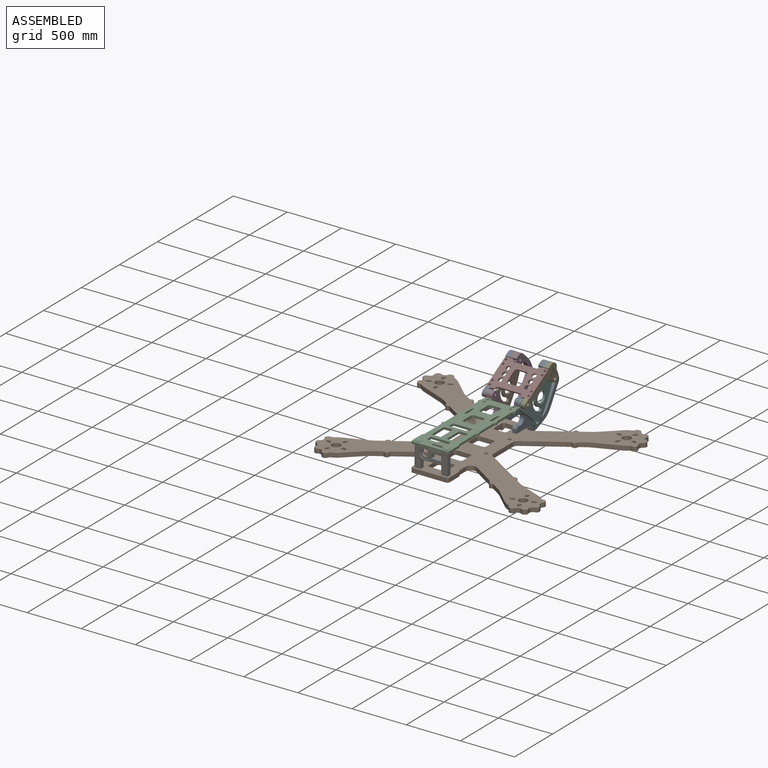
[diagram: assembled view]
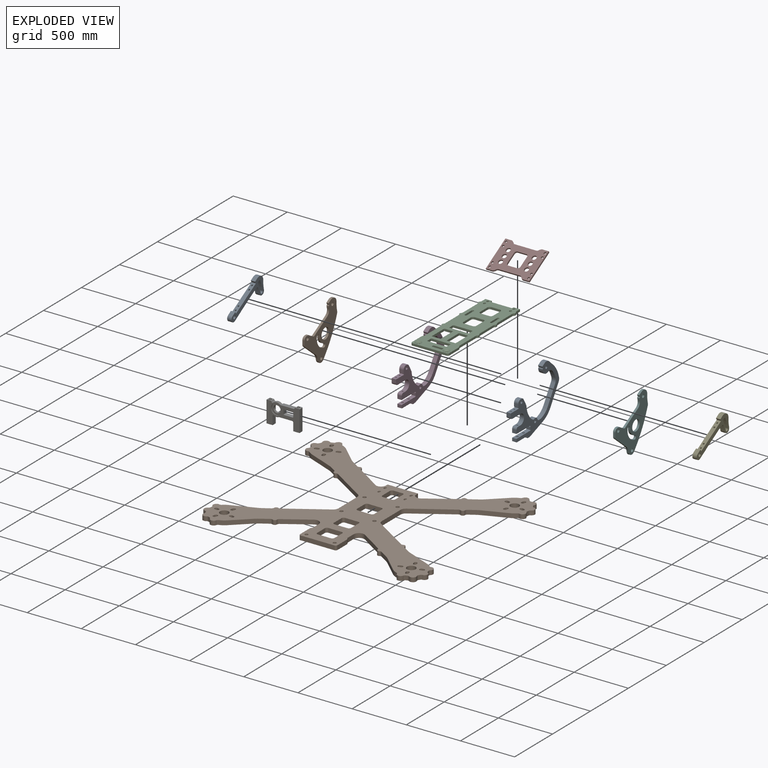
[diagram: exploded view]
GUIDED TOUR — MATED ASSEMBLY (Onshape document b9eb516c0b4cd9f7727613ba, AutoMate assembly b9eb516c0b4cd9f7727613ba_83f67d9e7461dbdbe959f93a_5855682b176cfd783782a654_default)

This assembly has 10 components, labeled P0..P9 below (a component is one placed occurrence of a part; the same part can appear more than once), held together by 9 mates. A mate is a constraint between two components; its type names the relative motion it leaves free:
  FASTENED — locks the two components together rigidly (no relative motion),
  REVOLUTE — leaves rotation about the listed axis free (a hinge).
Axis/direction vectors are unit vectors and 'through' points are millimeter coordinates, both in the assembly's world frame.

MATES
  1. REVOLUTE "Revolute 1": P4 <-> P5, axis (-1.000, 0.000, 0.000) through (20381.10, -17925.01, -26.40) mm
  2. REVOLUTE "Revolute 2": P0 <-> P1, axis (1.000, 0.000, 0.000) through (20061.10, -17925.01, -26.40) mm
  3. FASTENED "Fastened 1": P6 <-> P9, direction (0.000, 0.000, -1.000) through (20351.10, -18900.01, -265.48) mm
  4. FASTENED "Fastened 4": P3 <-> P9, direction (0.000, 0.000, -1.000) through (20101.10, -17872.51, -265.48) mm
  5. FASTENED "Fastened 6": P1 <-> P3, direction (1.000, 0.000, 0.000) through (20081.10, -17925.01, -26.40) mm
  6. FASTENED "Fastened 3": P8 <-> P9, direction (0.000, 0.000, -1.000) through (20341.10, -17872.51, -265.48) mm
  7. FASTENED "Fastened 5": P8 <-> P5, direction (1.000, 0.000, 0.000) through (20361.10, -17925.01, -26.40) mm
  8. FASTENED "Fastened 2": P2 <-> P6, direction (0.000, 0.000, -1.000) through (20351.10, -18900.01, -65.48) mm
  9. FASTENED "Fastened 7": P7 <-> P0, direction (0.000, 0.504, -0.864) through (20041.10, -17882.55, 9.96) mm

ASSEMBLY ORDER
  1. P8 — the base component [order verified]
  2. P5 [order verified]
  3. P9 [order verified]
  4. P4 [order verified]
  5. P3 [order verified]
  6. P2 [order verified]
  7. P1 [order verified]
  8. P0 [order verified]
  9. P6 [order verified]
  10. P7 [order verified]
Order-tag legend:
  [order verified] — this step's position reverses a verified removal order: the component was checked to insert without passing through the ones already placed.

Of the 10 components, 3 carry the full construction recipe — the FeatureScript program that regenerates the part's solid from scratch; the rest are supplied as boundary geometry only.
Each toured component is shown spotlighted twice — in the assembled view, then in the exploded view, where a leader line traces a displaced component back to its assembled socket (saturated green if recipe-attached, orange if geometry-only; every other component desaturated gray) — followed by its recipe or geometry summary and the mates that hold it.
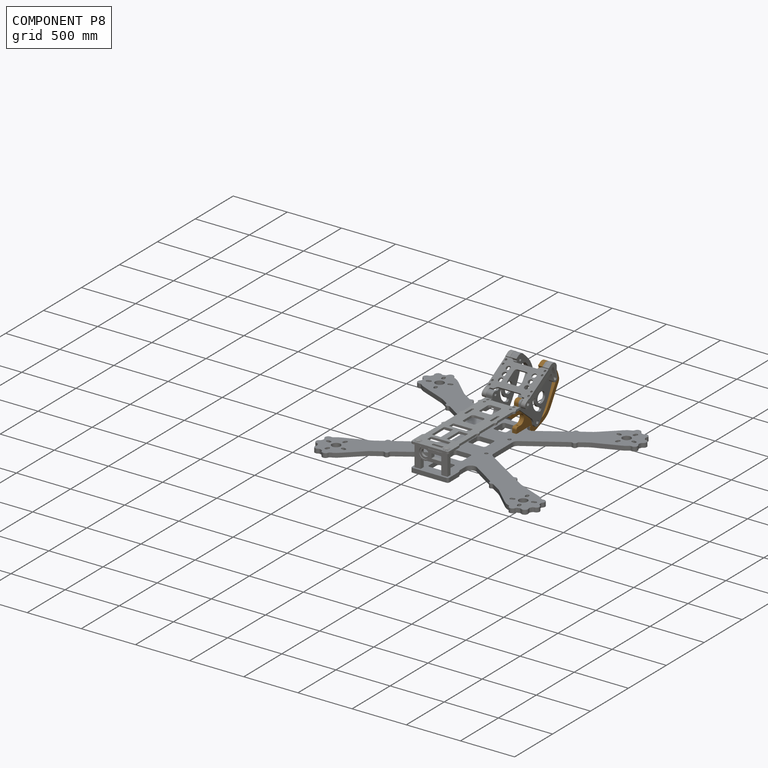
[diagram: component P8 — assembled]
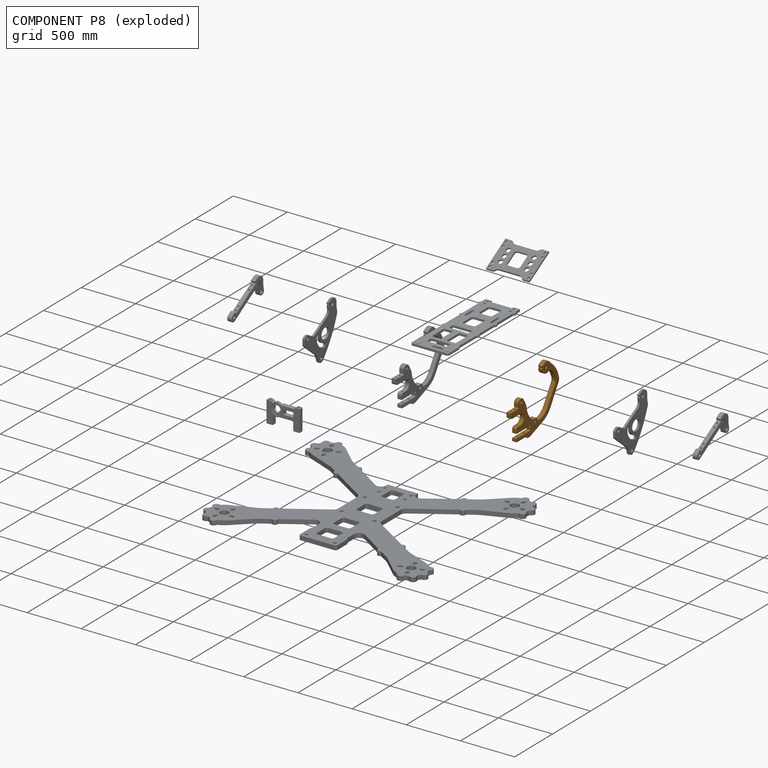
[diagram: component P8 — exploded]
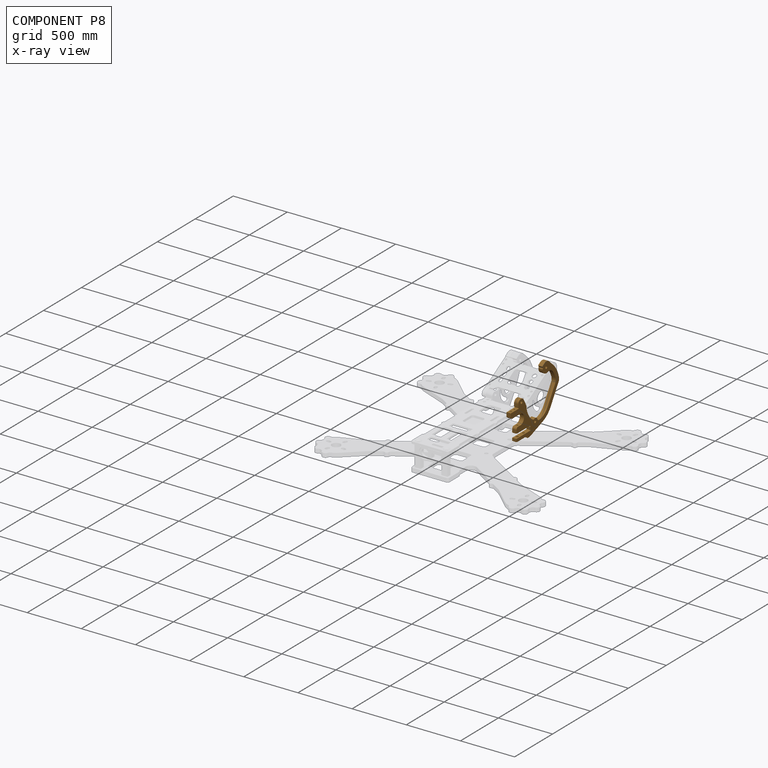
[diagram: component P8 — x-ray view]
COMPONENT P8 — geometry summary (no construction recipe available for this part):
  bounding box: 637.4 x 547.0 x 40.0 mm
  B-rep topology: 1 solid, 67 faces, 391 edges
  volume: 3140983 mm^3 (23% of its bounding box)
  symmetry: mirror-symmetric across its z mid-plane
Held by: FASTENED mate "Fastened 3" to P9; FASTENED mate "Fastened 5" to P5.
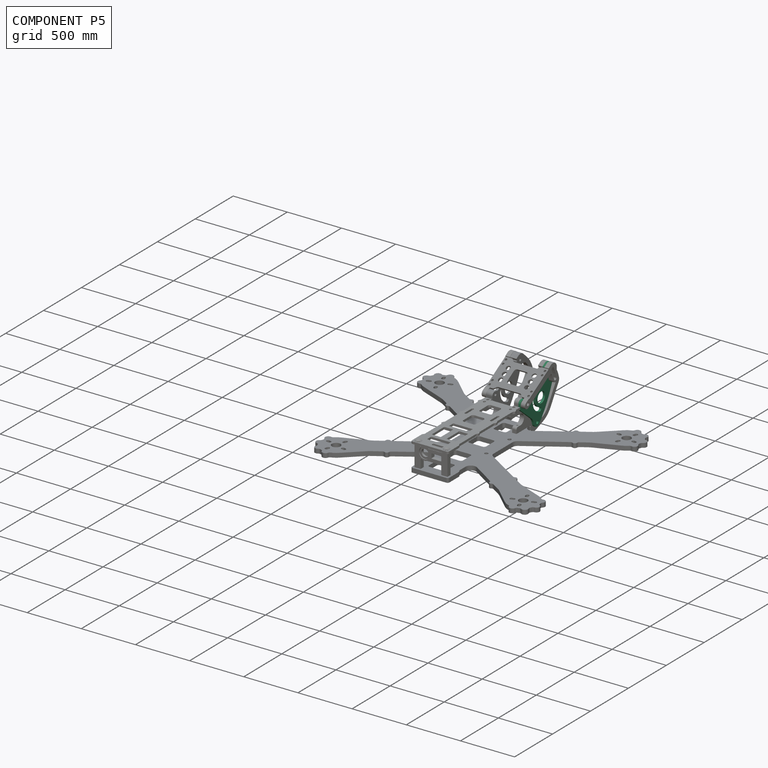
[diagram: component P5 — assembled]
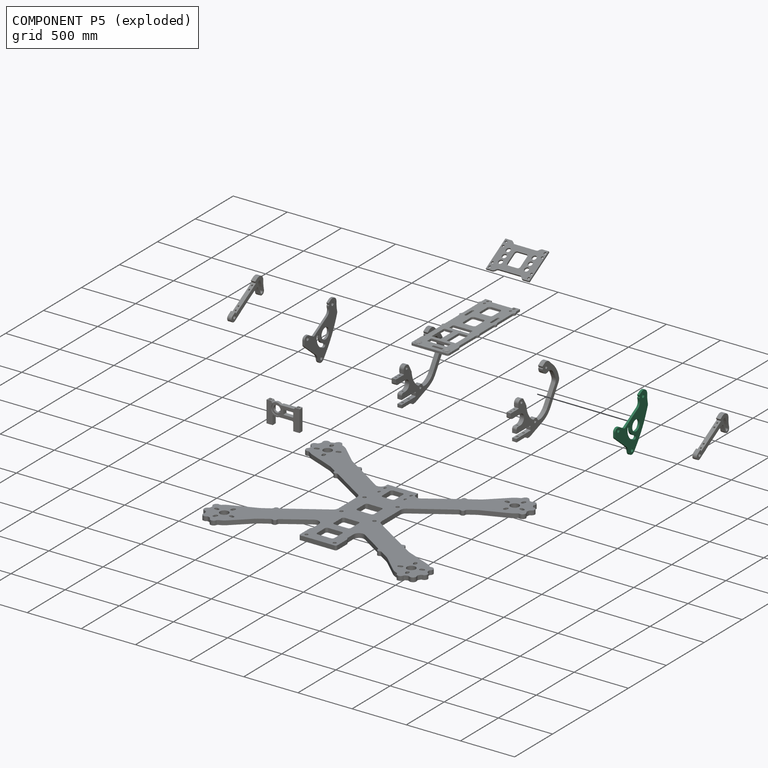
[diagram: component P5 — exploded]
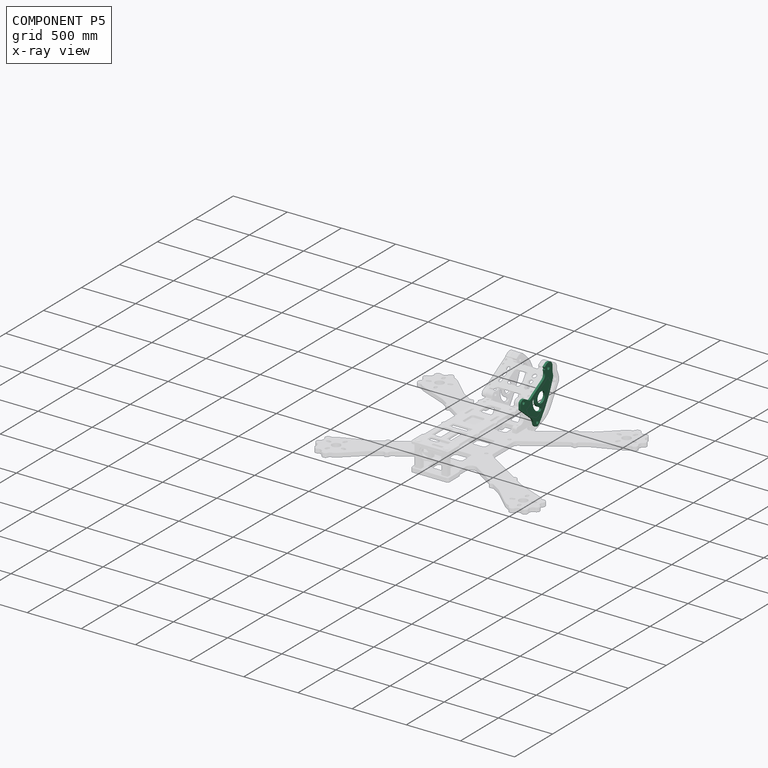
[diagram: component P5 — x-ray view]
COMPONENT P5 — same part as P1 (CADFS 00860523); its construction recipe is shown at P1.
Held by: REVOLUTE mate "Revolute 1" to P4; FASTENED mate "Fastened 5" to P8.
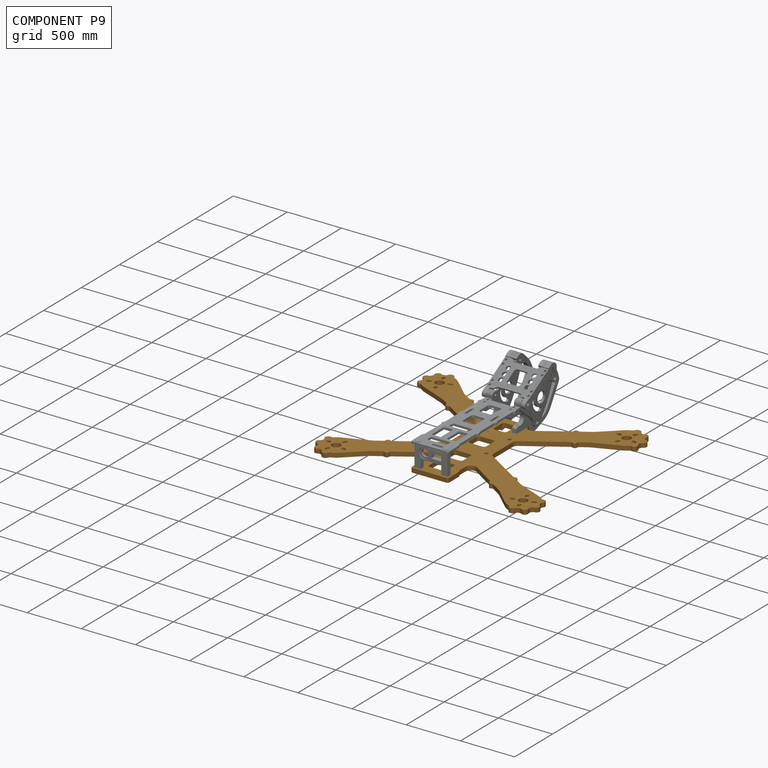
[diagram: component P9 — assembled]
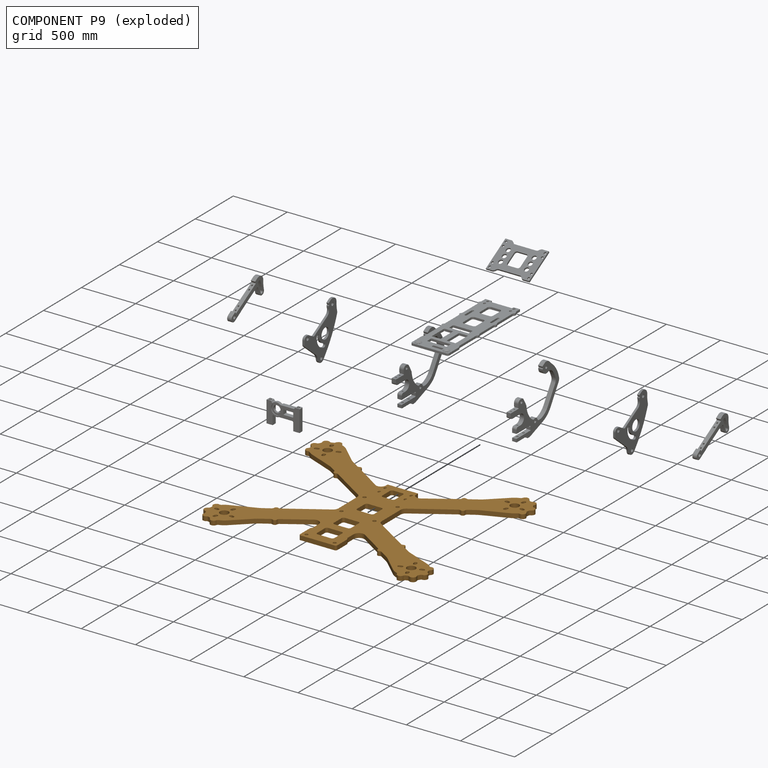
[diagram: component P9 — exploded]
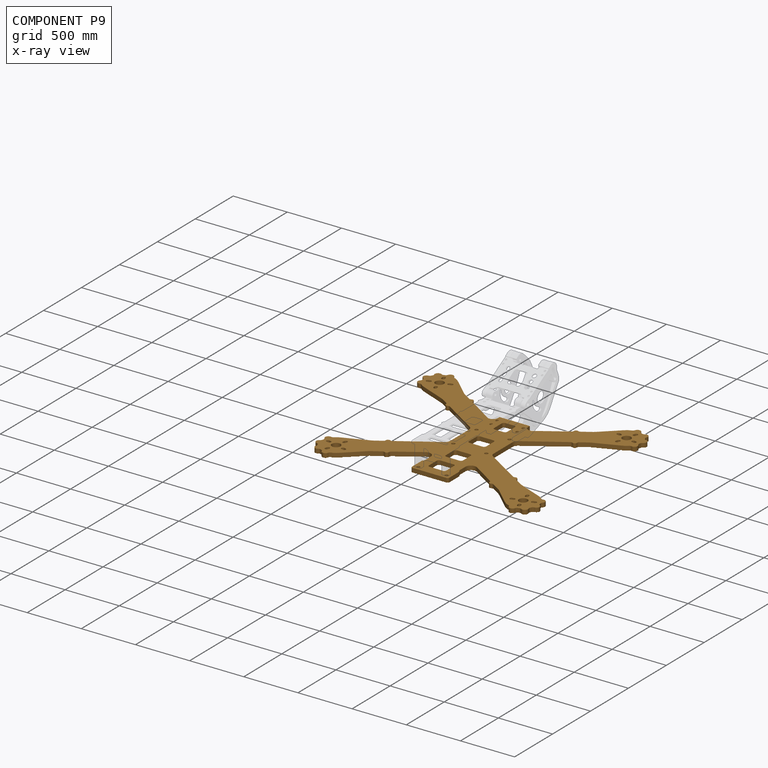
[diagram: component P9 — x-ray view]
COMPONENT P9 — geometry summary (no construction recipe available for this part):
  bounding box: 2064.0 x 1705.0 x 40.0 mm
  B-rep topology: 1 solid, 280 faces, 1644 edges
  volume: 43660846 mm^3 (31% of its bounding box)
  symmetry: 2-fold rotationally symmetric about the y axis; mirror-symmetric across its x mid-plane, z mid-plane
Held by: FASTENED mate "Fastened 1" to P6; FASTENED mate "Fastened 4" to P3; FASTENED mate "Fastened 3" to P8.
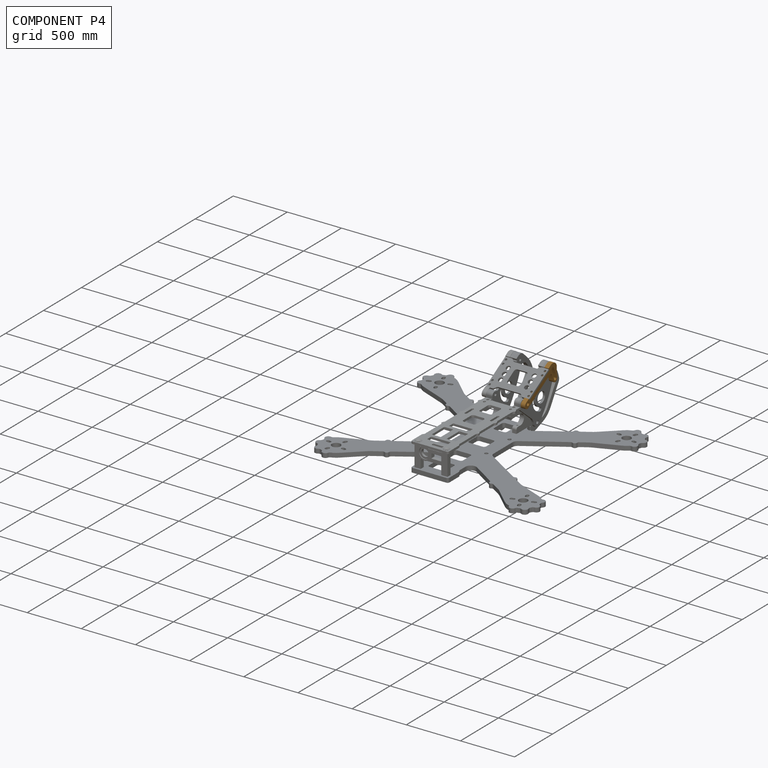
[diagram: component P4 — assembled]
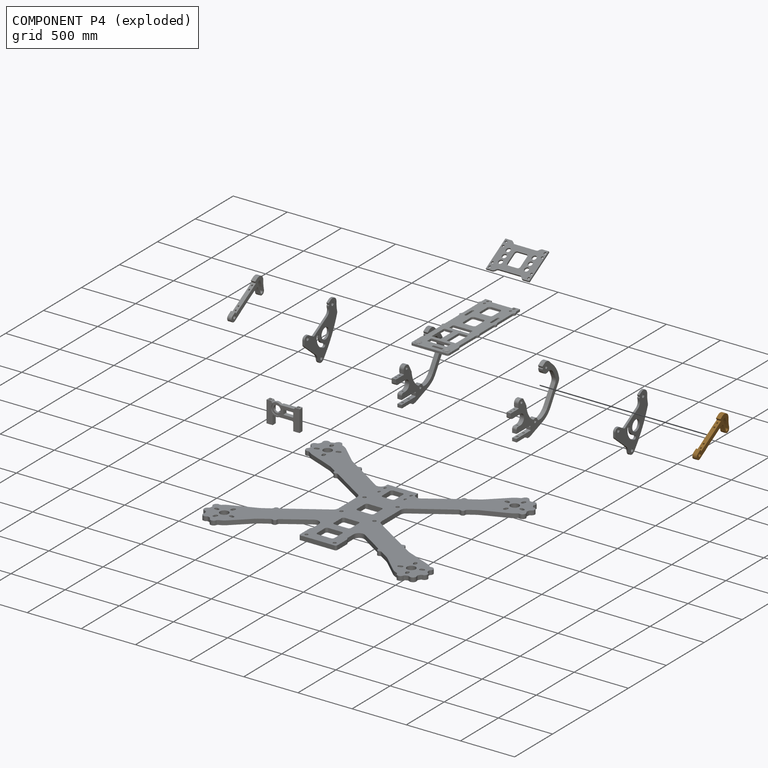
[diagram: component P4 — exploded]
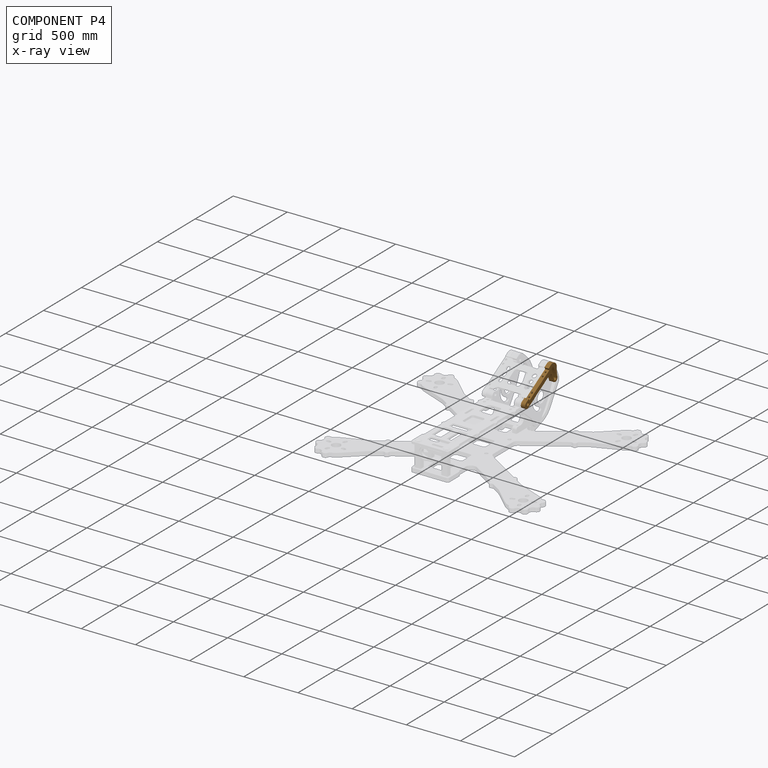
[diagram: component P4 — x-ray view]
COMPONENT P4 — geometry summary (no construction recipe available for this part):
  bounding box: 461.4 x 174.9 x 40.0 mm
  B-rep topology: 1 solid, 35 faces, 198 edges
  volume: 909315 mm^3 (28% of its bounding box)
  symmetry: mirror-symmetric across its z mid-plane
Held by: REVOLUTE mate "Revolute 1" to P5.
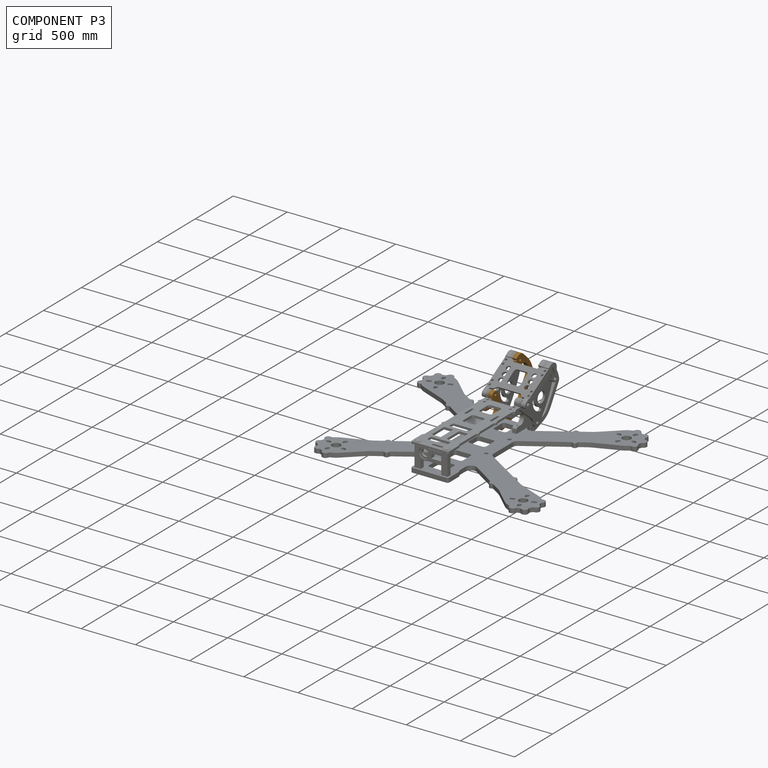
[diagram: component P3 — assembled]
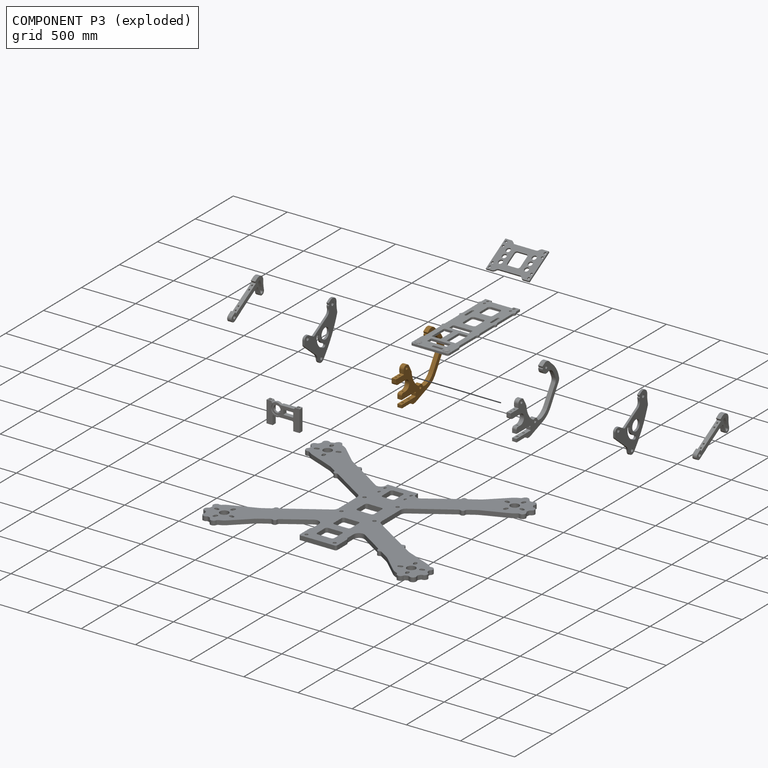
[diagram: component P3 — exploded]
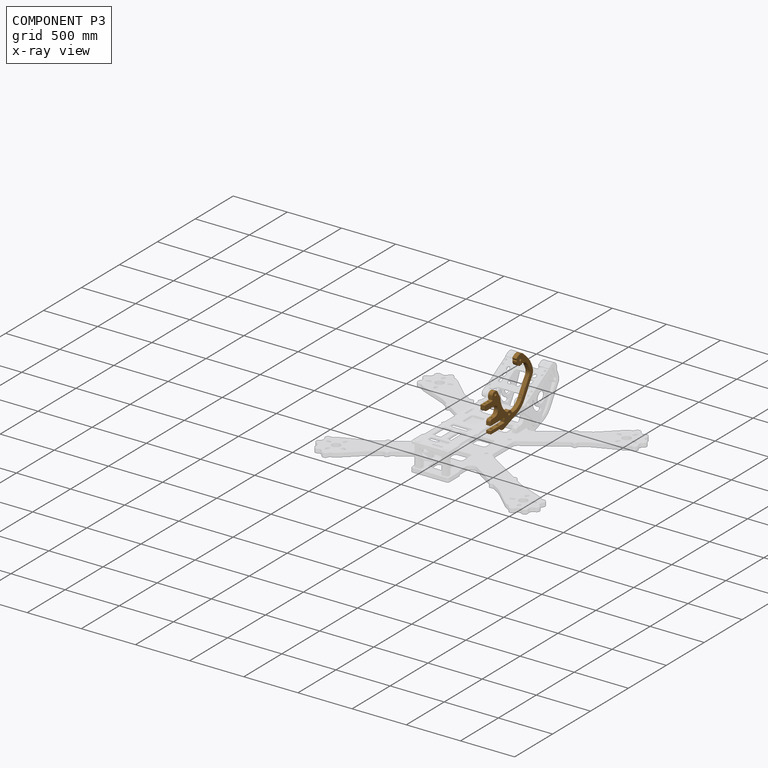
[diagram: component P3 — x-ray view]
COMPONENT P3 — geometry summary (no construction recipe available for this part):
  bounding box: 637.4 x 547.0 x 40.0 mm
  B-rep topology: 1 solid, 67 faces, 391 edges
  volume: 3140983 mm^3 (23% of its bounding box)
  symmetry: mirror-symmetric across its z mid-plane
Held by: FASTENED mate "Fastened 4" to P9; FASTENED mate "Fastened 6" to P1.
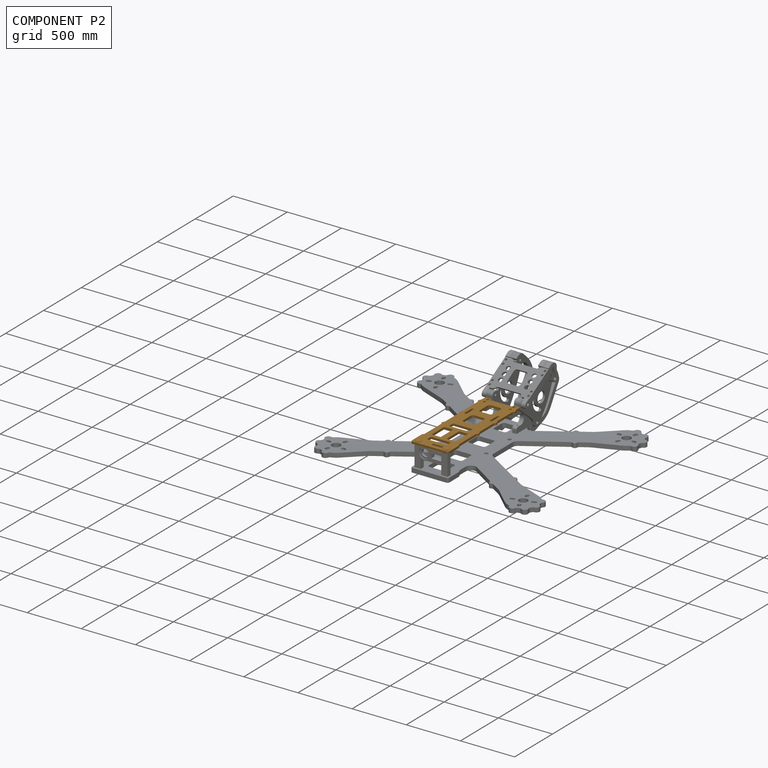
[diagram: component P2 — assembled]
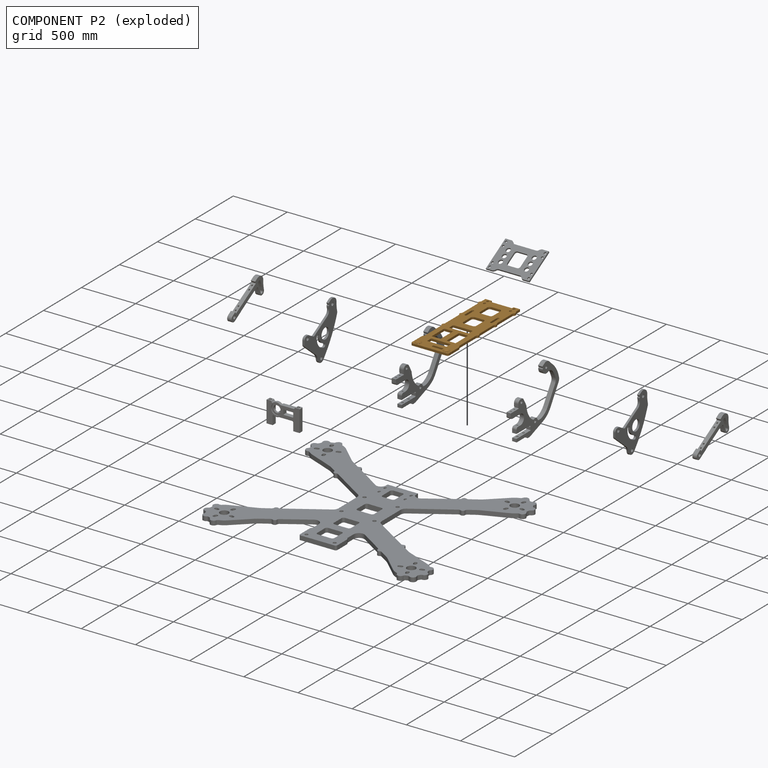
[diagram: component P2 — exploded]
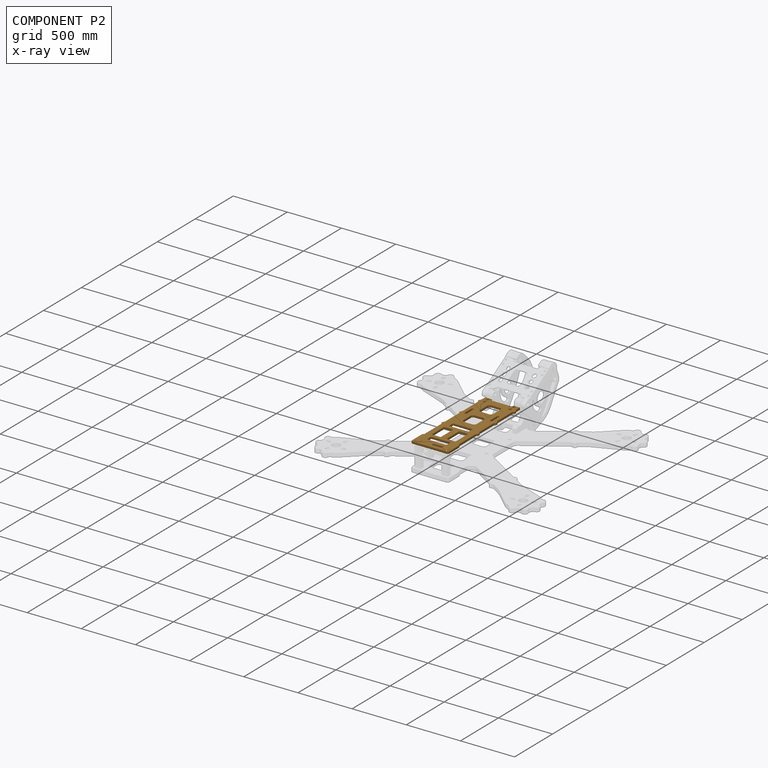
[diagram: component P2 — x-ray view]
COMPONENT P2 — geometry summary (no construction recipe available for this part):
  bounding box: 966.0 x 345.0 x 20.0 mm
  B-rep topology: 1 solid, 128 faces, 768 edges
  volume: 4396450 mm^3 (66% of its bounding box)
Held by: FASTENED mate "Fastened 2" to P6.
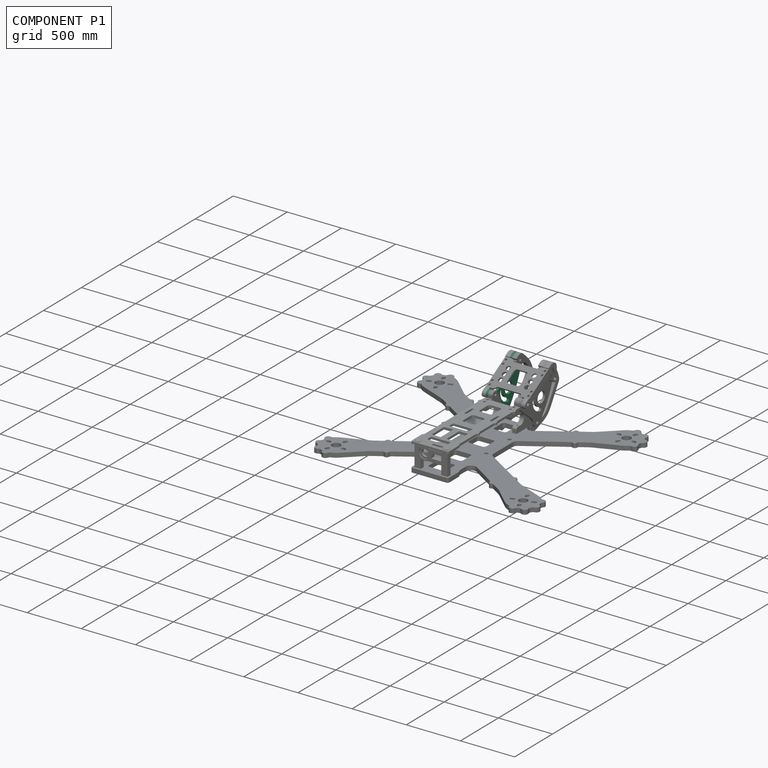
[diagram: component P1 — assembled]
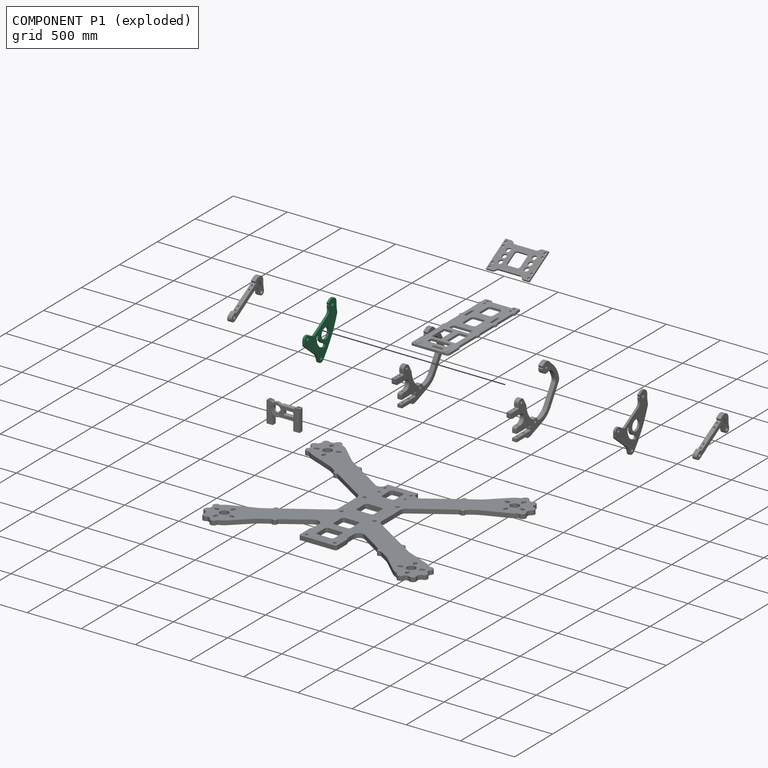
[diagram: component P1 — exploded]
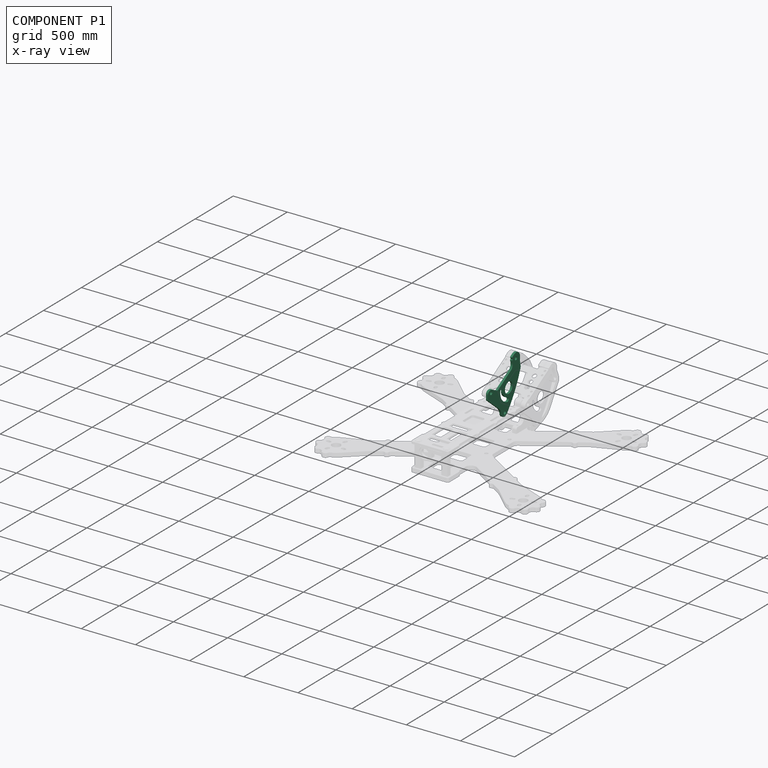
[diagram: component P1 — x-ray view]
COMPONENT P1 — recipe-attached (CADFS 00860523, mesh-verified: the recipe's output STEP matches this component's geometry to below the mesh-comparison resolution (tessellation chordal tolerance ~0.969 mm)).
Held by: REVOLUTE mate "Revolute 2" to P0; FASTENED mate "Fastened 6" to P3.
Construction recipe (FeatureScript — the CAD program that rebuilds this solid; sketch coordinates are in the units given by the * unit suffixes, e.g. mm):

FeatureScript 1511;
import(path : "onshape/std/geometry.fs", version : "1511.0");
import(path : "onshape/std/common.fs", version : "1511.0");
const mm = millimeter;
const VERTEX = EntityType.VERTEX;
const EDGE = EntityType.EDGE;
const FACE = EntityType.FACE;
const BODY = EntityType.BODY;
function v(x, y){return vector(x, y);}
function OD(order){return orderDisambiguation(order);}
function OSD(set){return originalSetDisambiguation(set);}
function TD(topology){return topologyDisambiguation(topology);}
function TDD(query){return trueDependencyDisambiguation(query);}
function sQuery(a, b, c) {return sketchEntityQuery(a, b, c);}

annotation { "Feature Type Name" : "Feature", "Feature Type Description" : "" }
export const myFeature = defineFeature(function(context is Context, id is Id, definition is map)
    precondition{}
    {
        {
            var Q0;
            Q0=qCreatedBy(makeId("Right.planeOp"),FACE);
            var sketch = newSketch(context, id + "F0", { "sketchPlane" : qUnion([Q0])});
            skArc(sketch, "E0", {"start": v(-12.88, 3.84) * mm, "mid": v(-11.46, 5.86) * mm, "end": v(-9.44, 4.45) * mm});
            skArc(sketch, "E1", {"start": v(-9.44, 4.45) * mm, "mid": v(-6.52, -0.36) * mm, "end": v(-1.13, -1.93) * mm});
            skArc(sketch, "E2", {"start": v(-1.13, -1.93) * mm, "mid": v(0.77, -3.52) * mm, "end": v(-0.82, -5.42) * mm});
            skArc(sketch, "E3", {"start": v(-0.82, -5.42) * mm, "mid": v(-8.65, -3.13) * mm, "end": v(-12.88, 3.84) * mm});
            skCircle(sketch, "E4", {"center": v(-1.8, 5.8) * mm, "radius": 5 * mm});
            skCircle(sketch, "E5", {"center": v(2.4, -17.3) * mm, "radius": 1.5 * mm});
            skCircle(sketch, "E6", {"center": v(19.05, 15.35) * mm, "radius": 1.5 * mm});
            skCircle(sketch, "E7", {"center": v(-20.59, 0.76) * mm, "radius": 1.5 * mm});
            skArc(sketch, "E8", {"start": v(21.21, 10.27) * mm, "mid": v(21.6, 10.22) * mm, "end": v(21.9, 10.45) * mm});
            skLineSegment(sketch, "E9", {"start": v(21.9, 10.45) * mm, "end": v(22.43, 11.35) * mm});
            skArc(sketch, "E10", {"start": v(22.43, 11.35) * mm, "mid": v(22.8, 11.94) * mm, "end": v(23.17, 12.53) * mm});
            skArc(sketch, "E11", {"start": v(23.17, 12.53) * mm, "mid": v(23.82, 13.87) * mm, "end": v(24.05, 15.35) * mm});
            skLineSegment(sketch, "E12", {"start": v(24.05, 15.35) * mm, "end": v(24.05, 15.68) * mm});
            skArc(sketch, "E13", {"start": v(24.05, 15.68) * mm, "mid": v(22.47, 19.32) * mm, "end": v(18.74, 20.67) * mm});
            skArc(sketch, "E14", {"start": v(18.74, 20.67) * mm, "mid": v(15.1, 20.71) * mm, "end": v(11.5, 21.29) * mm});
            skArc(sketch, "E15", {"start": v(11.5, 21.29) * mm, "mid": v(11.03, 21.4) * mm, "end": v(10.56, 21.5) * mm});
            skArc(sketch, "E16", {"start": v(10.56, 21.5) * mm, "mid": v(9.7, 21.55) * mm, "end": v(8.87, 21.36) * mm});
            skLineSegment(sketch, "E17", {"start": v(8.87, 21.36) * mm, "end": v(6.1, 20.3) * mm});
            skArc(sketch, "E18", {"start": v(6.1, 20.3) * mm, "mid": v(-8.81, 13.1) * mm, "end": v(-22.34, 3.54) * mm});
            skLineSegment(sketch, "E19", {"start": v(-22.34, 3.54) * mm, "end": v(-22.62, 3.31) * mm});
            skArc(sketch, "E20", {"start": v(-22.62, 3.31) * mm, "mid": v(-23.9, -0.83) * mm, "end": v(-20.65, -3.7) * mm});
            skArc(sketch, "E21", {"start": v(-20.65, -3.7) * mm, "mid": v(-17.27, -4.88) * mm, "end": v(-14.52, -7.16) * mm});
            skLineSegment(sketch, "E22", {"start": v(-14.52, -7.16) * mm, "end": v(-3.03, -20.84) * mm});
            skArc(sketch, "E23", {"start": v(-3.03, -20.84) * mm, "mid": v(-2.35, -21.37) * mm, "end": v(-1.5, -21.56) * mm});
            skLineSegment(sketch, "E24", {"start": v(-1.5, -21.56) * mm, "end": v(2.4, -21.56) * mm});
            skArc(sketch, "E25", {"start": v(2.4, -21.56) * mm, "mid": v(4.53, -20.68) * mm, "end": v(5.4, -18.56) * mm});
            skLineSegment(sketch, "E26", {"start": v(5.4, -18.56) * mm, "end": v(5.4, -17.3) * mm});
            skArc(sketch, "E27", {"start": v(5.4, -17.3) * mm, "mid": v(5.3, -16.53) * mm, "end": v(5, -15.8) * mm});
            skLineSegment(sketch, "E28", {"start": v(5, -15.8) * mm, "end": v(1.78, -10.23) * mm});
            skArc(sketch, "E29", {"start": v(1.78, -10.23) * mm, "mid": v(1.51, -9.23) * mm, "end": v(1.78, -8.23) * mm});
            skLineSegment(sketch, "E30", {"start": v(1.78, -8.23) * mm, "end": v(11.4, 8.42) * mm});
            skArc(sketch, "E31", {"start": v(11.4, 8.42) * mm, "mid": v(13.99, 10.6) * mm, "end": v(17.38, 10.63) * mm});
            skArc(sketch, "E32", {"start": v(17.38, 10.63) * mm, "mid": v(18.27, 10.4) * mm, "end": v(19.18, 10.35) * mm});
            skArc(sketch, "E33", {"start": v(19.18, 10.35) * mm, "mid": v(19.43, 10.43) * mm, "end": v(19.61, 10.62) * mm});
            skArc(sketch, "E34", {"start": v(19.61, 10.62) * mm, "mid": v(19.92, 10.86) * mm, "end": v(20.3, 10.82) * mm});
            skLineSegment(sketch, "E35", {"start": v(20.3, 10.82) * mm, "end": v(21.21, 10.27) * mm});
            skSolve(sketch);
        }
        {
            var Q0;
            Q0 = qSketchRegion(id + "F0", true);
            extrude(context, id + "F1", {"entities" : qUnion([Q0]), "depth" : 2 * mm, "offsetDistance" : 25 * mm});
        }
        {
            var Q0;
            Q0=makeQuery(id+"F1.opExtrude","SWEPT_BODY",BODY,{"disambiguationData":[OSD([sQuery(id+"F0.wireOp",EDGE,"E0"),sQuery(id+"F0.wireOp",EDGE,"E1"),sQuery(id+"F0.wireOp",EDGE,"E2"),sQuery(id+"F0.wireOp",EDGE,"E3"),sQuery(id+"F0.wireOp",EDGE,"E4"),sQuery(id+"F0.wireOp",EDGE,"E5"),sQuery(id+"F0.wireOp",EDGE,"E6"),sQuery(id+"F0.wireOp",EDGE,"E7"),sQuery(id+"F0.wireOp",EDGE,"E8"),sQuery(id+"F0.wireOp",EDGE,"E9"),sQuery(id+"F0.wireOp",EDGE,"E10"),sQuery(id+"F0.wireOp",EDGE,"E11"),sQuery(id+"F0.wireOp",EDGE,"E12"),sQuery(id+"F0.wireOp",EDGE,"E13"),sQuery(id+"F0.wireOp",EDGE,"E14"),sQuery(id+"F0.wireOp",EDGE,"E15"),sQuery(id+"F0.wireOp",EDGE,"E16"),sQuery(id+"F0.wireOp",EDGE,"E17"),sQuery(id+"F0.wireOp",EDGE,"E18"),sQuery(id+"F0.wireOp",EDGE,"E19"),sQuery(id+"F0.wireOp",EDGE,"E20"),sQuery(id+"F0.wireOp",EDGE,"E21"),sQuery(id+"F0.wireOp",EDGE,"E22"),sQuery(id+"F0.wireOp",EDGE,"E23"),sQuery(id+"F0.wireOp",EDGE,"E24"),sQuery(id+"F0.wireOp",EDGE,"E25"),sQuery(id+"F0.wireOp",EDGE,"E26"),sQuery(id+"F0.wireOp",EDGE,"E27"),sQuery(id+"F0.wireOp",EDGE,"E28"),sQuery(id+"F0.wireOp",EDGE,"E29"),sQuery(id+"F0.wireOp",EDGE,"E30"),sQuery(id+"F0.wireOp",EDGE,"E31"),sQuery(id+"F0.wireOp",EDGE,"E32"),sQuery(id+"F0.wireOp",EDGE,"E33"),sQuery(id+"F0.wireOp",EDGE,"E34"),sQuery(id+"F0.wireOp",EDGE,"E35")])]});
            var Q1;
            Q1=sQuery(id+"F0.wireOp",VERTEX,"E7.center");
            transform(context, id + "F2", {"entities" : qUnion([Q0]), "transformType" : TransformType.SCALE_UNIFORMLY, "scale" : 10, "scalePoint" : qUnion([Q1]), "makeCopy" : false});
        }
    });
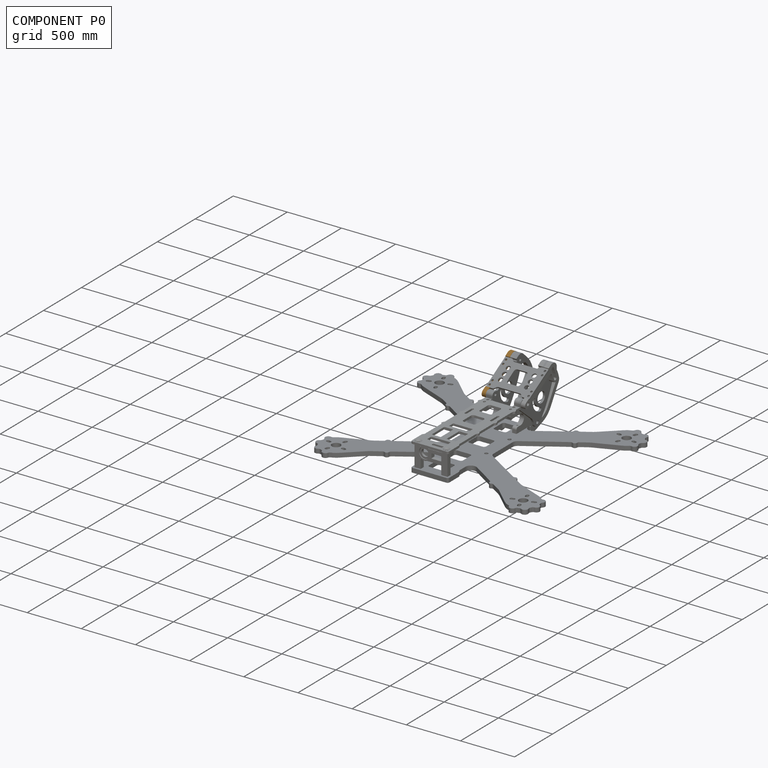
[diagram: component P0 — assembled]
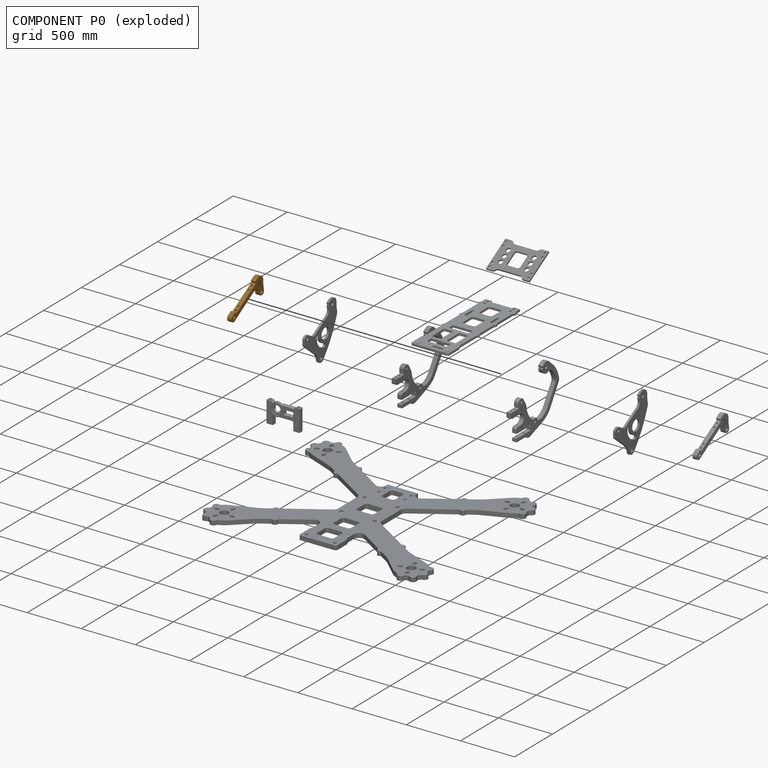
[diagram: component P0 — exploded]
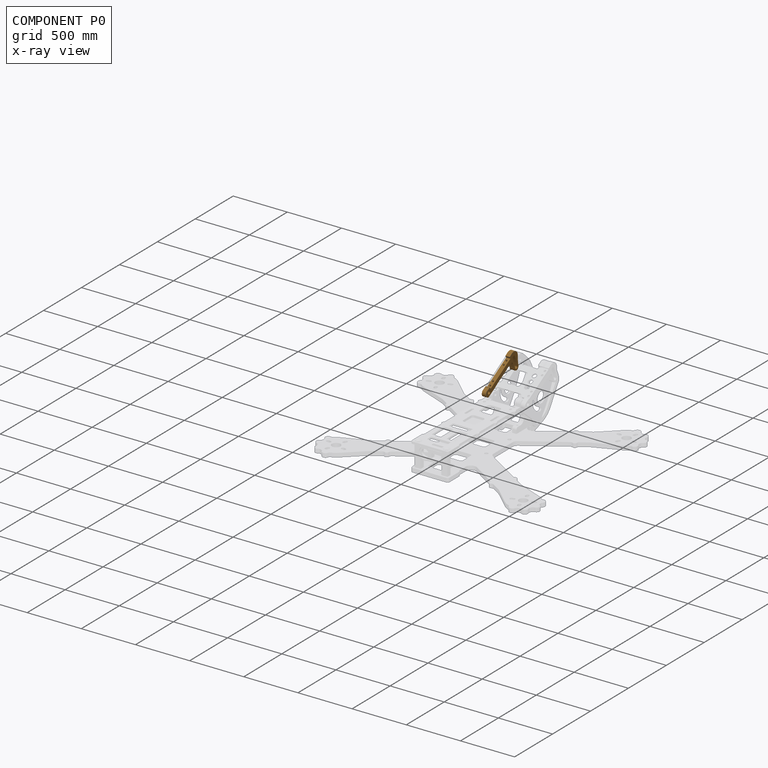
[diagram: component P0 — x-ray view]
COMPONENT P0 — geometry summary (no construction recipe available for this part):
  bounding box: 461.4 x 174.9 x 40.0 mm
  B-rep topology: 1 solid, 35 faces, 198 edges
  volume: 909315 mm^3 (28% of its bounding box)
  symmetry: mirror-symmetric across its z mid-plane
Held by: REVOLUTE mate "Revolute 2" to P1; FASTENED mate "Fastened 7" to P7.
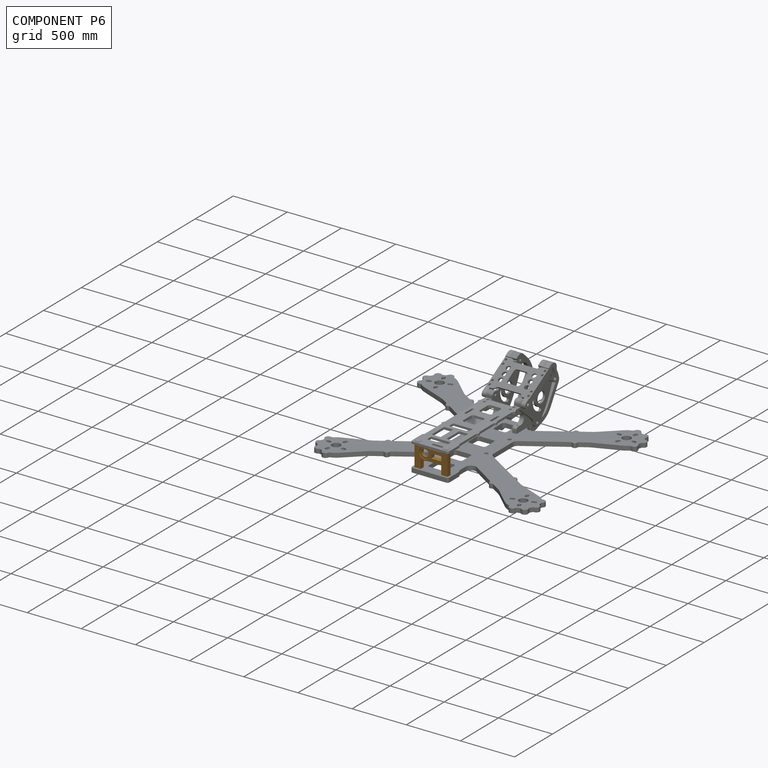
[diagram: component P6 — assembled]
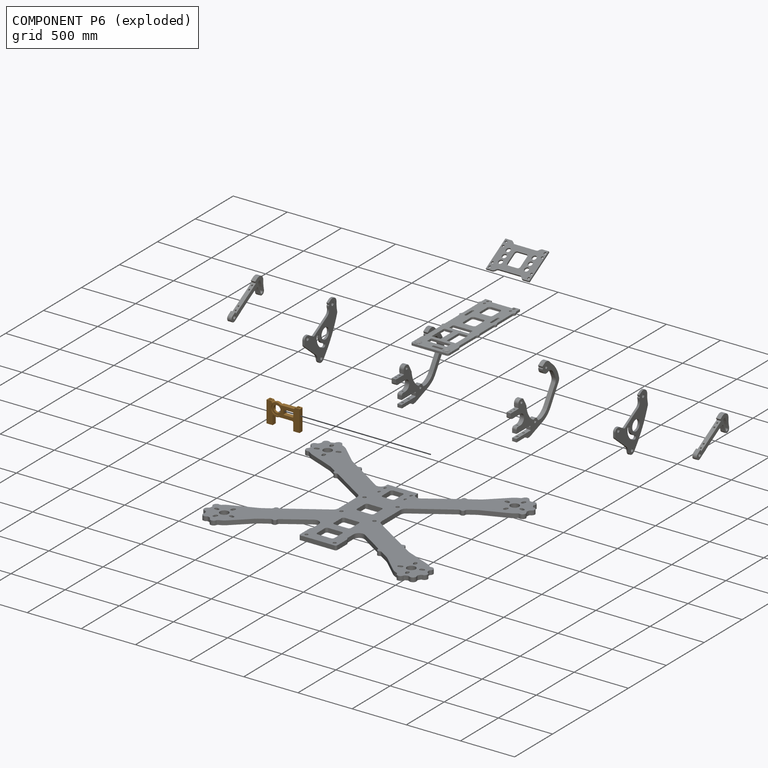
[diagram: component P6 — exploded]
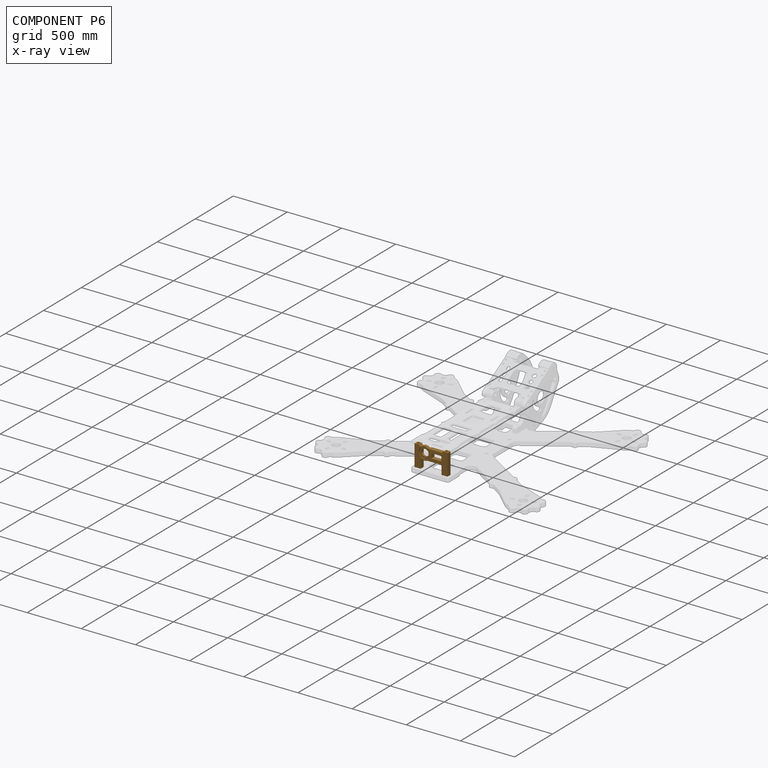
[diagram: component P6 — x-ray view]
COMPONENT P6 — geometry summary (no construction recipe available for this part):
  bounding box: 304.6 x 200.0 x 40.0 mm
  B-rep topology: 1 solid, 43 faces, 244 edges
  volume: 1146837 mm^3 (47% of its bounding box)
Held by: FASTENED mate "Fastened 1" to P9; FASTENED mate "Fastened 2" to P2.
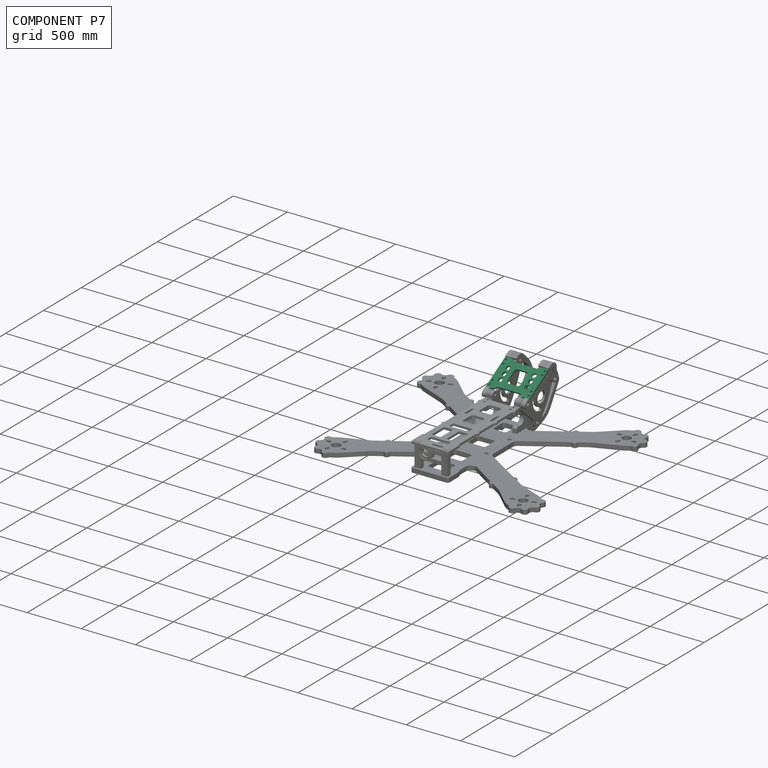
[diagram: component P7 — assembled]
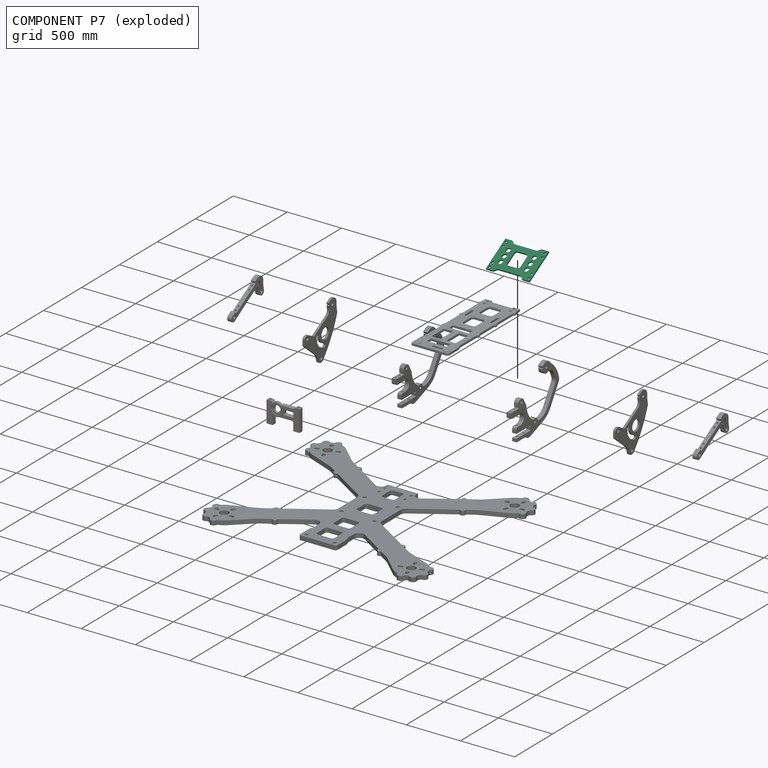
[diagram: component P7 — exploded]
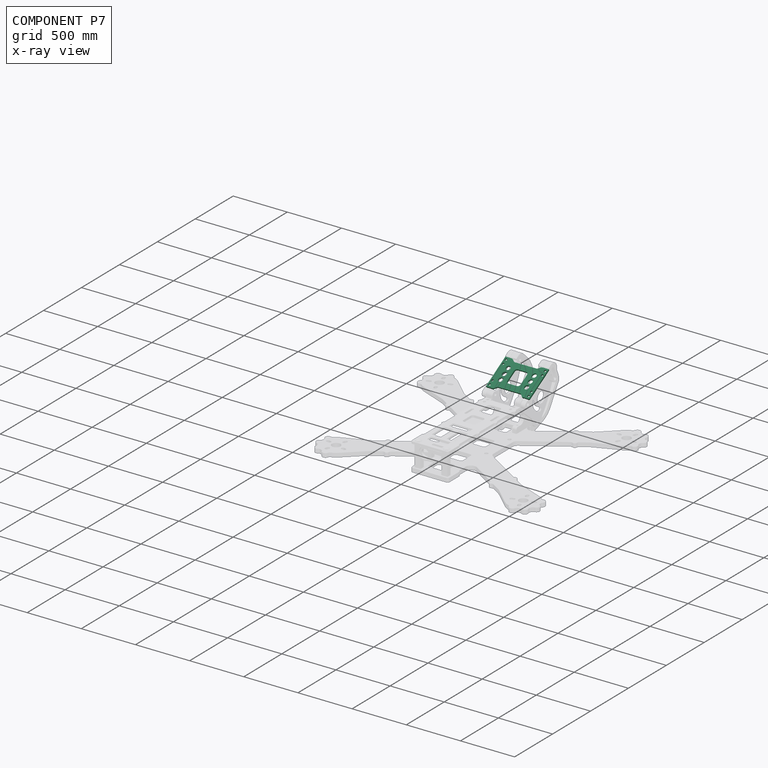
[diagram: component P7 — x-ray view]
COMPONENT P7 — recipe-attached (CADFS 00860529, mesh-verified: the recipe's output STEP matches this component's geometry to below the mesh-comparison resolution (tessellation chordal tolerance ~0.75 mm)).
Held by: FASTENED mate "Fastened 7" to P0.
Construction recipe (FeatureScript — the CAD program that rebuilds this solid; sketch coordinates are in the units given by the * unit suffixes, e.g. mm):

FeatureScript 1511;
import(path : "onshape/std/geometry.fs", version : "1511.0");
import(path : "onshape/std/common.fs", version : "1511.0");
const mm = millimeter;
const VERTEX = EntityType.VERTEX;
const EDGE = EntityType.EDGE;
const FACE = EntityType.FACE;
const BODY = EntityType.BODY;
function v(x, y){return vector(x, y);}
function OD(order){return orderDisambiguation(order);}
function OSD(set){return originalSetDisambiguation(set);}
function TD(topology){return topologyDisambiguation(topology);}
function TDD(query){return trueDependencyDisambiguation(query);}
function sQuery(a, b, c) {return sketchEntityQuery(a, b, c);}

annotation { "Feature Type Name" : "Feature", "Feature Type Description" : "" }
export const myFeature = defineFeature(function(context is Context, id is Id, definition is map)
    precondition{}
    {
        {
            var Q0;
            Q0=qCreatedBy(makeId("Top.planeOp"),FACE);
            var sketch = newSketch(context, id + "F0", { "sketchPlane" : qUnion([Q0])});
            skCircle(sketch, "E0", {"center": v(-18, 12.5) * mm, "radius": 1 * mm});
            skCircle(sketch, "E1", {"center": v(-18, -12.5) * mm, "radius": 1 * mm});
            skCircle(sketch, "E2", {"center": v(18, 12.5) * mm, "radius": 1 * mm});
            skCircle(sketch, "E3", {"center": v(18, -12.5) * mm, "radius": 1 * mm});
            skCircle(sketch, "E4", {"center": v(-12, 0) * mm, "radius": 2 * mm});
            skCircle(sketch, "E5", {"center": v(-12, 6) * mm, "radius": 2 * mm});
            skCircle(sketch, "E6", {"center": v(-12, -5.74) * mm, "radius": 2 * mm});
            skCircle(sketch, "E7", {"center": v(12, 0) * mm, "radius": 2 * mm});
            skCircle(sketch, "E8", {"center": v(12, 6) * mm, "radius": 2 * mm});
            skCircle(sketch, "E9", {"center": v(12, -5.74) * mm, "radius": 2 * mm});
            skLineSegment(sketch, "E10", {"start": v(-4, 7) * mm, "end": v(4, 7) * mm});
            skArc(sketch, "E11", {"start": v(4, 7) * mm, "mid": v(5.41, 6.41) * mm, "end": v(6, 5) * mm});
            skLineSegment(sketch, "E12", {"start": v(6, 5) * mm, "end": v(6, -5) * mm});
            skArc(sketch, "E13", {"start": v(6, -5) * mm, "mid": v(5.41, -6.41) * mm, "end": v(4, -7) * mm});
            skLineSegment(sketch, "E14", {"start": v(4, -7) * mm, "end": v(-4, -7) * mm});
            skArc(sketch, "E15", {"start": v(-4, -7) * mm, "mid": v(-5.41, -6.41) * mm, "end": v(-6, -5) * mm});
            skLineSegment(sketch, "E16", {"start": v(-6, -5) * mm, "end": v(-6, 5) * mm});
            skArc(sketch, "E17", {"start": v(-6, 5) * mm, "mid": v(-5.41, 6.41) * mm, "end": v(-4, 7) * mm});
            skCircle(sketch, "E18", {"center": v(-18, 8.2) * mm, "radius": 1 * mm});
            skCircle(sketch, "E19", {"center": v(18, 8.2) * mm, "radius": 1 * mm});
            skCircle(sketch, "E20", {"center": v(-18, -8.2) * mm, "radius": 1 * mm});
            skCircle(sketch, "E21", {"center": v(18, -8.2) * mm, "radius": 1 * mm});
            skArc(sketch, "E22", {"start": v(12.74, 14.41) * mm, "mid": v(13.4, 14.85) * mm, "end": v(14.16, 15) * mm});
            skLineSegment(sketch, "E23", {"start": v(14.16, 15) * mm, "end": v(20, 15) * mm});
            skLineSegment(sketch, "E24", {"start": v(20, 15) * mm, "end": v(20, -15) * mm});
            skLineSegment(sketch, "E25", {"start": v(20, -15) * mm, "end": v(14.16, -15) * mm});
            skArc(sketch, "E26", {"start": v(14.16, -15) * mm, "mid": v(13.4, -14.85) * mm, "end": v(12.74, -14.41) * mm});
            skLineSegment(sketch, "E27", {"start": v(12.74, -14.41) * mm, "end": v(11.41, -13.09) * mm});
            skArc(sketch, "E28", {"start": v(11.41, -13.09) * mm, "mid": v(10.77, -12.65) * mm, "end": v(10, -12.5) * mm});
            skLineSegment(sketch, "E29", {"start": v(10, -12.5) * mm, "end": v(-10, -12.5) * mm});
            skArc(sketch, "E30", {"start": v(-10, -12.5) * mm, "mid": v(-10.77, -12.65) * mm, "end": v(-11.41, -13.09) * mm});
            skLineSegment(sketch, "E31", {"start": v(-11.41, -13.09) * mm, "end": v(-12.74, -14.41) * mm});
            skArc(sketch, "E32", {"start": v(-12.74, -14.41) * mm, "mid": v(-13.4, -14.85) * mm, "end": v(-14.16, -15) * mm});
            skLineSegment(sketch, "E33", {"start": v(-14.16, -15) * mm, "end": v(-20, -15) * mm});
            skLineSegment(sketch, "E34", {"start": v(-20, -15) * mm, "end": v(-20, 15) * mm});
            skLineSegment(sketch, "E35", {"start": v(-20, 15) * mm, "end": v(-14.16, 15) * mm});
            skArc(sketch, "E36", {"start": v(-14.16, 15) * mm, "mid": v(-13.4, 14.85) * mm, "end": v(-12.74, 14.41) * mm});
            skLineSegment(sketch, "E37", {"start": v(-12.74, 14.41) * mm, "end": v(-11.41, 13.09) * mm});
            skArc(sketch, "E38", {"start": v(-11.41, 13.09) * mm, "mid": v(-10.77, 12.65) * mm, "end": v(-10, 12.5) * mm});
            skLineSegment(sketch, "E39", {"start": v(-10, 12.5) * mm, "end": v(10, 12.5) * mm});
            skArc(sketch, "E40", {"start": v(10, 12.5) * mm, "mid": v(10.77, 12.65) * mm, "end": v(11.41, 13.09) * mm});
            skLineSegment(sketch, "E41", {"start": v(11.41, 13.09) * mm, "end": v(12.74, 14.41) * mm});
            skSolve(sketch);
        }
        {
            var Q0;
            Q0 = qSketchRegion(id + "F0", true);
            extrude(context, id + "F1", {"entities" : qUnion([Q0]), "depth" : 1.5 * mm, "offsetDistance" : 25 * mm});
        }
        {
            var Q0;
            Q0=makeQuery(id+"F1.opExtrude","SWEPT_BODY",BODY,{"disambiguationData":[OSD([sQuery(id+"F0.wireOp",EDGE,"E0"),sQuery(id+"F0.wireOp",EDGE,"E2"),sQuery(id+"F0.wireOp",EDGE,"E4"),sQuery(id+"F0.wireOp",EDGE,"E5"),sQuery(id+"F0.wireOp",EDGE,"E6"),sQuery(id+"F0.wireOp",EDGE,"E7"),sQuery(id+"F0.wireOp",EDGE,"E8"),sQuery(id+"F0.wireOp",EDGE,"E9"),sQuery(id+"F0.wireOp",EDGE,"E10"),sQuery(id+"F0.wireOp",EDGE,"E11"),sQuery(id+"F0.wireOp",EDGE,"E12"),sQuery(id+"F0.wireOp",EDGE,"E13"),sQuery(id+"F0.wireOp",EDGE,"E14"),sQuery(id+"F0.wireOp",EDGE,"E15"),sQuery(id+"F0.wireOp",EDGE,"E16"),sQuery(id+"F0.wireOp",EDGE,"E17"),sQuery(id+"F0.wireOp",EDGE,"E1"),sQuery(id+"F0.wireOp",EDGE,"E3"),sQuery(id+"F0.wireOp",EDGE,"E18"),sQuery(id+"F0.wireOp",EDGE,"E19"),sQuery(id+"F0.wireOp",EDGE,"E20"),sQuery(id+"F0.wireOp",EDGE,"E21"),sQuery(id+"F0.wireOp",EDGE,"E22"),sQuery(id+"F0.wireOp",EDGE,"E23"),sQuery(id+"F0.wireOp",EDGE,"E24"),sQuery(id+"F0.wireOp",EDGE,"E25"),sQuery(id+"F0.wireOp",EDGE,"E26"),sQuery(id+"F0.wireOp",EDGE,"E27"),sQuery(id+"F0.wireOp",EDGE,"E28"),sQuery(id+"F0.wireOp",EDGE,"E29"),sQuery(id+"F0.wireOp",EDGE,"E30"),sQuery(id+"F0.wireOp",EDGE,"E31"),sQuery(id+"F0.wireOp",EDGE,"E32"),sQuery(id+"F0.wireOp",EDGE,"E33"),sQuery(id+"F0.wireOp",EDGE,"E34"),sQuery(id+"F0.wireOp",EDGE,"E35"),sQuery(id+"F0.wireOp",EDGE,"E36"),sQuery(id+"F0.wireOp",EDGE,"E37"),sQuery(id+"F0.wireOp",EDGE,"E38"),sQuery(id+"F0.wireOp",EDGE,"E39"),sQuery(id+"F0.wireOp",EDGE,"E40"),sQuery(id+"F0.wireOp",EDGE,"E41")])]});
            var Q1;
            Q1=makeQuery(id+"F1.opExtrude","CAP_VERTEX",VERTEX,{"disambiguationData":[OSD([sQuery(id+"F0.wireOp",EDGE,"E33"),sQuery(id+"F0.wireOp",EDGE,"E34")])],"isStart":false});
            transform(context, id + "F2", {"entities" : qUnion([Q0]), "transformType" : TransformType.SCALE_UNIFORMLY, "scale" : 10, "scalePoint" : qUnion([Q1]), "makeCopy" : false});
        }
    });
PROVENANCE & LICENSES
Assembly (occurrences, transforms, mates, per-part STEP geometry): AutoMate dataset, Zenodo record 7776208, CC0.
Construction recipes: CADFS (HuggingFace VladPyatov/CADFS, CC-BY-4.0, layered over the ABC dataset), FeatureScript reconstruction programs keyed by ABC model id.
Join: ABC meta listings map ABC model id -> Onshape documentId; within a shared document, parts are matched by geometric signature (bounding-box dims + volume at 0.1% relative tolerance, exact B-rep face/solid counts).
Verification: 3 of this assembly's 10 components carry a recipe attachment, and every attachment is mesh-verified: the CADFS STEP and the AutoMate member STEP were compared as meshes in their shared local frame (symmetric sampled-point-to-mesh distance); worst across the 3 attachments: below the mesh-comparison resolution (tessellation chordal tolerance ~0.969 mm) on a 646 mm part.
Renders: orthographic iso camera (az 35 / el 25); the floor grid conveys scale (grid pitch printed in each image; no ruler). In the exploded view each component is displaced by its stored offset vector: the offsets alone carry the explosion direction (mate normal/axis signs are not orientation cues and do not encode it), and separation distances are assigned per mate-chain, not proportionally to assembly-order depth.
